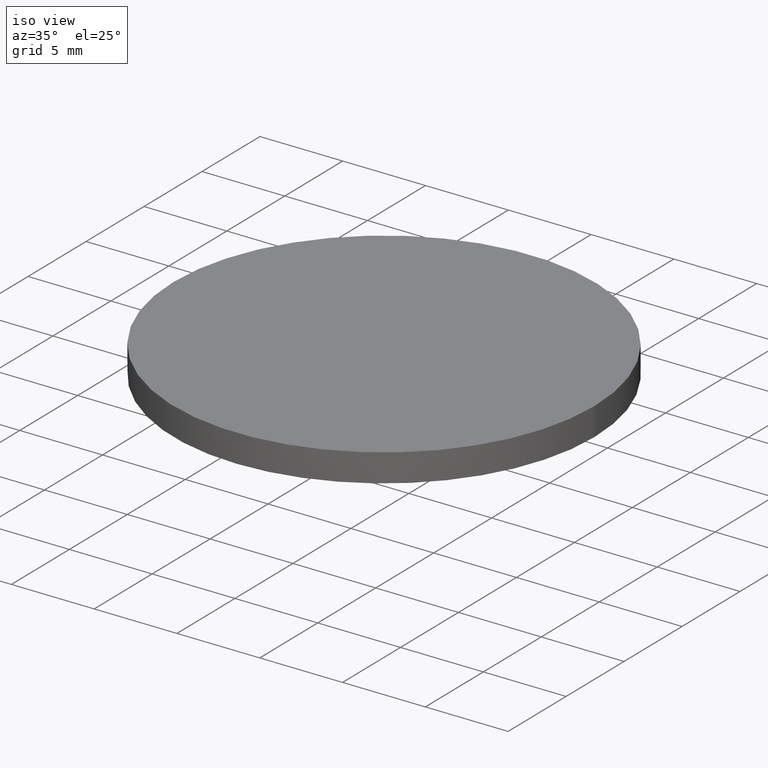
[diagram: clean part render]
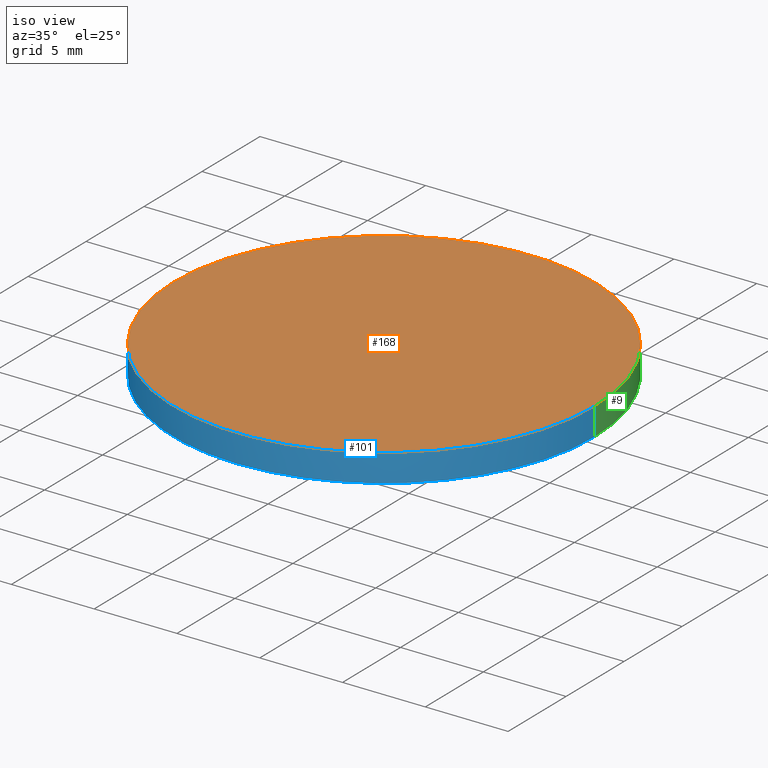
[diagram: same view with three faces highlighted in distinct colors, each labeled with its STEP entity id]
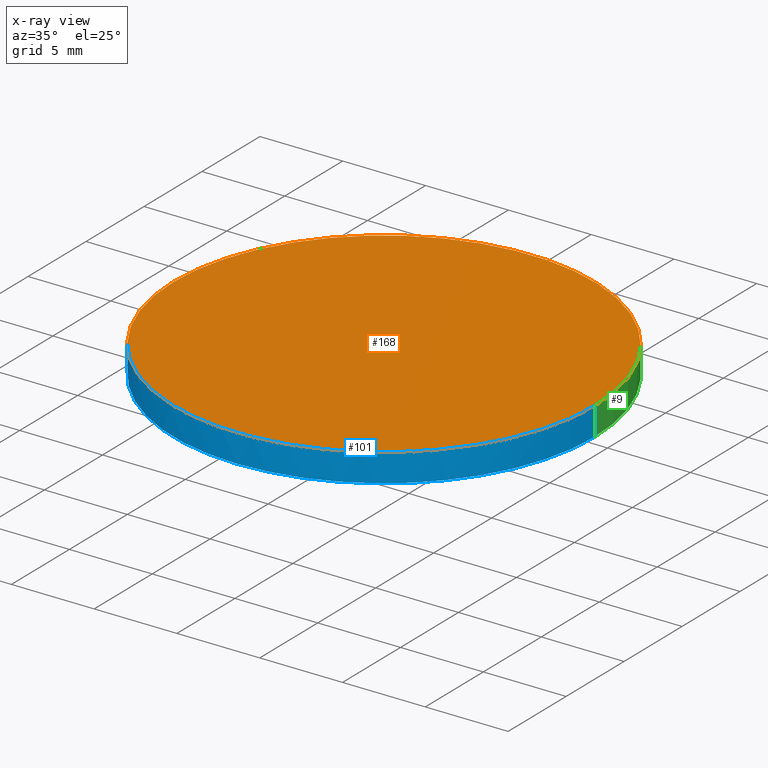
[diagram: x-ray of the same camera — body ghosted, the three highlighted faces saturated]
A machine part, iso view with three faces highlighted in distinct colors.
The next image is the same camera in x-ray (body ghosted, the three faces saturated) — at least one of them is partly hidden behind the body in this view.
Their STEP definitions:

[orange] entity #168 — the highlighted planar face has unit normal (0, 0, 1).
#14 = ORIENTED_EDGE ( 'NONE', *, *, #39, .F. ) ;
#16 = CIRCLE ( 'NONE', #153, 12.69999999999999900 ) ;
#33 = FACE_OUTER_BOUND ( 'NONE', #158, .T. ) ;
#36 = DIRECTION ( 'NONE',  ( -0.0000000000000000000, -0.0000000000000000000, -1.000000000000000000 ) ) ;
#39 = EDGE_CURVE ( 'NONE', #202, #103, #74, .T. ) ;
#48 = DIRECTION ( 'NONE',  ( 1.000000000000000000, 0.0000000000000000000, 0.0000000000000000000 ) ) ;
#52 = DIRECTION ( 'NONE',  ( 0.0000000000000000000, 0.0000000000000000000, 1.000000000000000000 ) ) ;
#62 = CARTESIAN_POINT ( 'NONE',  ( 12.69999999999999900, 2.442490654175340100E-015, 4.400000000000000400 ) ) ;
#64 = AXIS2_PLACEMENT_3D ( 'NONE', #159, #52, #149 ) ;
#74 = CIRCLE ( 'NONE', #108, 12.69999999999999900 ) ;
#76 = PLANE ( 'NONE',  #64 ) ;
#103 = VERTEX_POINT ( 'NONE', #62 ) ;
#106 = DIRECTION ( 'NONE',  ( -0.0000000000000000000, -0.0000000000000000000, -1.000000000000000000 ) ) ;
#108 = AXIS2_PLACEMENT_3D ( 'NONE', #167, #106, #48 ) ;
#125 = ORIENTED_EDGE ( 'NONE', *, *, #191, .F. ) ;
#130 = CARTESIAN_POINT ( 'NONE',  ( 4.996003610813200500E-016, 2.442490654175340100E-015, 4.400000000000000400 ) ) ;
#149 = DIRECTION ( 'NONE',  ( 1.000000000000000000, 0.0000000000000000000, -0.0000000000000000000 ) ) ;
#153 = AXIS2_PLACEMENT_3D ( 'NONE', #130, #36, #161 ) ;
#158 = EDGE_LOOP ( 'NONE', ( #125, #14 ) ) ;
#159 = CARTESIAN_POINT ( 'NONE',  ( 0.0000000000000000000, 26.11199999999999800, 4.400000000000000400 ) ) ;
#161 = DIRECTION ( 'NONE',  ( 1.000000000000000000, 0.0000000000000000000, 0.0000000000000000000 ) ) ;
#167 = CARTESIAN_POINT ( 'NONE',  ( 4.996003610813200500E-016, 2.442490654175340100E-015, 4.400000000000000400 ) ) ;
#168 = ADVANCED_FACE ( 'NONE', ( #33 ), #76, .T. ) ;
#177 = CARTESIAN_POINT ( 'NONE',  ( -12.69999999999999900, 3.997792089092478900E-015, 4.400000000000000400 ) ) ;
#191 = EDGE_CURVE ( 'NONE', #103, #202, #16, .T. ) ;
#202 = VERTEX_POINT ( 'NONE', #177 ) ;

[blue] entity #101 — the highlighted cylindrical surface (partial cylindrical patch) has radius 12.7 mm, axis along (0, 0, 1).
#16 = CIRCLE ( 'NONE', #153, 12.69999999999999900 ) ;
#18 = LINE ( 'NONE', #204, #115 ) ;
#23 = FACE_OUTER_BOUND ( 'NONE', #190, .T. ) ;
#31 = EDGE_CURVE ( 'NONE', #60, #202, #120, .T. ) ;
#32 = DIRECTION ( 'NONE',  ( 1.000000000000000000, 0.0000000000000000000, 0.0000000000000000000 ) ) ;
#36 = DIRECTION ( 'NONE',  ( -0.0000000000000000000, -0.0000000000000000000, -1.000000000000000000 ) ) ;
#44 = AXIS2_PLACEMENT_3D ( 'NONE', #123, #83, #32 ) ;
#56 = ORIENTED_EDGE ( 'NONE', *, *, #221, .F. ) ;
#60 = VERTEX_POINT ( 'NONE', #228 ) ;
#62 = CARTESIAN_POINT ( 'NONE',  ( 12.69999999999999900, 2.442490654175340100E-015, 4.400000000000000400 ) ) ;
#71 = DIRECTION ( 'NONE',  ( -0.0000000000000000000, -0.0000000000000000000, -1.000000000000000000 ) ) ;
#83 = DIRECTION ( 'NONE',  ( -0.0000000000000000000, -0.0000000000000000000, -1.000000000000000000 ) ) ;
#85 = ORIENTED_EDGE ( 'NONE', *, *, #191, .T. ) ;
#87 = EDGE_CURVE ( 'NONE', #171, #60, #188, .T. ) ;
#90 = DIRECTION ( 'NONE',  ( 1.000000000000000000, 0.0000000000000000000, 0.0000000000000000000 ) ) ;
#100 = VECTOR ( 'NONE', #143, 1000.000000000000000 ) ;
#101 = ADVANCED_FACE ( 'NONE', ( #23 ), #233, .T. ) ;
#103 = VERTEX_POINT ( 'NONE', #62 ) ;
#114 = AXIS2_PLACEMENT_3D ( 'NONE', #139, #172, #166 ) ;
#115 = VECTOR ( 'NONE', #189, 1000.000000000000000 ) ;
#117 = EDGE_CURVE ( 'NONE', #225, #103, #18, .T. ) ;
#120 = LINE ( 'NONE', #169, #100 ) ;
#123 = CARTESIAN_POINT ( 'NONE',  ( 4.996003610813200500E-016, 2.442490654175340100E-015, 2.709361147626399900 ) ) ;
#128 = CARTESIAN_POINT ( 'NONE',  ( 12.69999999999999900, 2.442490654175340100E-015, 2.709361147626399900 ) ) ;
#130 = CARTESIAN_POINT ( 'NONE',  ( 4.996003610813200500E-016, 2.442490654175340100E-015, 4.400000000000000400 ) ) ;
#134 = AXIS2_PLACEMENT_3D ( 'NONE', #209, #71, #90 ) ;
#139 = CARTESIAN_POINT ( 'NONE',  ( 4.996003610813200500E-016, 2.442490654175340100E-015, 2.709361147626399900 ) ) ;
#143 = DIRECTION ( 'NONE',  ( 0.0000000000000000000, 0.0000000000000000000, 1.000000000000000000 ) ) ;
#153 = AXIS2_PLACEMENT_3D ( 'NONE', #130, #36, #161 ) ;
#161 = DIRECTION ( 'NONE',  ( 1.000000000000000000, 0.0000000000000000000, 0.0000000000000000000 ) ) ;
#163 = ORIENTED_EDGE ( 'NONE', *, *, #117, .T. ) ;
#166 = DIRECTION ( 'NONE',  ( 1.000000000000000000, 0.0000000000000000000, 0.0000000000000000000 ) ) ;
#169 = CARTESIAN_POINT ( 'NONE',  ( -12.69999999999999900, 3.997792089092478900E-015, 2.709361147626399900 ) ) ;
#171 = VERTEX_POINT ( 'NONE', #212 ) ;
#172 = DIRECTION ( 'NONE',  ( 0.0000000000000000000, 0.0000000000000000000, 1.000000000000000000 ) ) ;
#177 = CARTESIAN_POINT ( 'NONE',  ( -12.69999999999999900, 3.997792089092478900E-015, 4.400000000000000400 ) ) ;
#188 = CIRCLE ( 'NONE', #44, 12.69999999999999900 ) ;
#189 = DIRECTION ( 'NONE',  ( 0.0000000000000000000, 0.0000000000000000000, 1.000000000000000000 ) ) ;
#190 = EDGE_LOOP ( 'NONE', ( #210, #207, #56, #163, #85 ) ) ;
#191 = EDGE_CURVE ( 'NONE', #103, #202, #16, .T. ) ;
#202 = VERTEX_POINT ( 'NONE', #177 ) ;
#203 = CIRCLE ( 'NONE', #134, 12.69999999999999900 ) ;
#204 = CARTESIAN_POINT ( 'NONE',  ( 12.69999999999999900, 2.442490654175340100E-015, 2.709361147626399900 ) ) ;
#207 = ORIENTED_EDGE ( 'NONE', *, *, #87, .F. ) ;
#209 = CARTESIAN_POINT ( 'NONE',  ( 4.996003610813200500E-016, 2.442490654175340100E-015, 2.709361147626399900 ) ) ;
#210 = ORIENTED_EDGE ( 'NONE', *, *, #31, .F. ) ;
#212 = CARTESIAN_POINT ( 'NONE',  ( 5.112128332460749800E-015, -12.69999999999999600, 2.709361147626402100 ) ) ;
#221 = EDGE_CURVE ( 'NONE', #225, #171, #203, .T. ) ;
#225 = VERTEX_POINT ( 'NONE', #128 ) ;
#228 = CARTESIAN_POINT ( 'NONE',  ( -12.69999999999999900, 3.997792089092478900E-015, 2.709361147626399900 ) ) ;
#233 = CYLINDRICAL_SURFACE ( 'NONE', #114, 12.69999999999999900 ) ;

[green] entity #9 — the highlighted cylindrical surface (partial cylindrical patch) has radius 12.7 mm, axis along (0, 0, 1).
#9 = ADVANCED_FACE ( 'NONE', ( #156 ), #63, .T. ) ;
#11 = DIRECTION ( 'NONE',  ( 0.0000000000000000000, 0.0000000000000000000, 1.000000000000000000 ) ) ;
#18 = LINE ( 'NONE', #204, #115 ) ;
#27 = ORIENTED_EDGE ( 'NONE', *, *, #175, .F. ) ;
#31 = EDGE_CURVE ( 'NONE', #60, #202, #120, .T. ) ;
#39 = EDGE_CURVE ( 'NONE', #202, #103, #74, .T. ) ;
#47 = ORIENTED_EDGE ( 'NONE', *, *, #157, .F. ) ;
#48 = DIRECTION ( 'NONE',  ( 1.000000000000000000, 0.0000000000000000000, 0.0000000000000000000 ) ) ;
#51 = EDGE_LOOP ( 'NONE', ( #47, #147, #129, #69, #27 ) ) ;
#54 = CARTESIAN_POINT ( 'NONE',  ( 4.996003610813200500E-016, 2.442490654175340100E-015, 2.709361147626399900 ) ) ;
#60 = VERTEX_POINT ( 'NONE', #228 ) ;
#62 = CARTESIAN_POINT ( 'NONE',  ( 12.69999999999999900, 2.442490654175340100E-015, 4.400000000000000400 ) ) ;
#63 = CYLINDRICAL_SURFACE ( 'NONE', #138, 12.69999999999999900 ) ;
#67 = DIRECTION ( 'NONE',  ( -0.0000000000000000000, -0.0000000000000000000, -1.000000000000000000 ) ) ;
#69 = ORIENTED_EDGE ( 'NONE', *, *, #117, .F. ) ;
#74 = CIRCLE ( 'NONE', #108, 12.69999999999999900 ) ;
#84 = CARTESIAN_POINT ( 'NONE',  ( 4.996003610813200500E-016, 2.442490654175340100E-015, 2.709361147626399900 ) ) ;
#100 = VECTOR ( 'NONE', #143, 1000.000000000000000 ) ;
#103 = VERTEX_POINT ( 'NONE', #62 ) ;
#106 = DIRECTION ( 'NONE',  ( -0.0000000000000000000, -0.0000000000000000000, -1.000000000000000000 ) ) ;
#108 = AXIS2_PLACEMENT_3D ( 'NONE', #167, #106, #48 ) ;
#110 = CIRCLE ( 'NONE', #126, 12.69999999999999900 ) ;
#115 = VECTOR ( 'NONE', #189, 1000.000000000000000 ) ;
#116 = DIRECTION ( 'NONE',  ( 1.000000000000000000, 0.0000000000000000000, 0.0000000000000000000 ) ) ;
#117 = EDGE_CURVE ( 'NONE', #225, #103, #18, .T. ) ;
#120 = LINE ( 'NONE', #169, #100 ) ;
#126 = AXIS2_PLACEMENT_3D ( 'NONE', #54, #67, #235 ) ;
#128 = CARTESIAN_POINT ( 'NONE',  ( 12.69999999999999900, 2.442490654175340100E-015, 2.709361147626399900 ) ) ;
#129 = ORIENTED_EDGE ( 'NONE', *, *, #39, .T. ) ;
#131 = CARTESIAN_POINT ( 'NONE',  ( 4.996003610813200500E-016, 2.442490654175340100E-015, 2.709361147626399900 ) ) ;
#135 = VERTEX_POINT ( 'NONE', #142 ) ;
#138 = AXIS2_PLACEMENT_3D ( 'NONE', #84, #11, #186 ) ;
#142 = CARTESIAN_POINT ( 'NONE',  ( 1.104149714745860900E-014, 12.69999999999999600, 2.709361147626402100 ) ) ;
#143 = DIRECTION ( 'NONE',  ( 0.0000000000000000000, 0.0000000000000000000, 1.000000000000000000 ) ) ;
#147 = ORIENTED_EDGE ( 'NONE', *, *, #31, .T. ) ;
#156 = FACE_OUTER_BOUND ( 'NONE', #51, .T. ) ;
#157 = EDGE_CURVE ( 'NONE', #60, #135, #183, .T. ) ;
#167 = CARTESIAN_POINT ( 'NONE',  ( 4.996003610813200500E-016, 2.442490654175340100E-015, 4.400000000000000400 ) ) ;
#169 = CARTESIAN_POINT ( 'NONE',  ( -12.69999999999999900, 3.997792089092478900E-015, 2.709361147626399900 ) ) ;
#175 = EDGE_CURVE ( 'NONE', #135, #225, #110, .T. ) ;
#177 = CARTESIAN_POINT ( 'NONE',  ( -12.69999999999999900, 3.997792089092478900E-015, 4.400000000000000400 ) ) ;
#183 = CIRCLE ( 'NONE', #198, 12.69999999999999900 ) ;
#186 = DIRECTION ( 'NONE',  ( 1.000000000000000000, 0.0000000000000000000, 0.0000000000000000000 ) ) ;
#189 = DIRECTION ( 'NONE',  ( 0.0000000000000000000, 0.0000000000000000000, 1.000000000000000000 ) ) ;
#198 = AXIS2_PLACEMENT_3D ( 'NONE', #131, #215, #116 ) ;
#202 = VERTEX_POINT ( 'NONE', #177 ) ;
#204 = CARTESIAN_POINT ( 'NONE',  ( 12.69999999999999900, 2.442490654175340100E-015, 2.709361147626399900 ) ) ;
#215 = DIRECTION ( 'NONE',  ( -0.0000000000000000000, -0.0000000000000000000, -1.000000000000000000 ) ) ;
#225 = VERTEX_POINT ( 'NONE', #128 ) ;
#228 = CARTESIAN_POINT ( 'NONE',  ( -12.69999999999999900, 3.997792089092478900E-015, 2.709361147626399900 ) ) ;
#235 = DIRECTION ( 'NONE',  ( 1.000000000000000000, 8.881784197001252300E-016, 0.0000000000000000000 ) ) ;